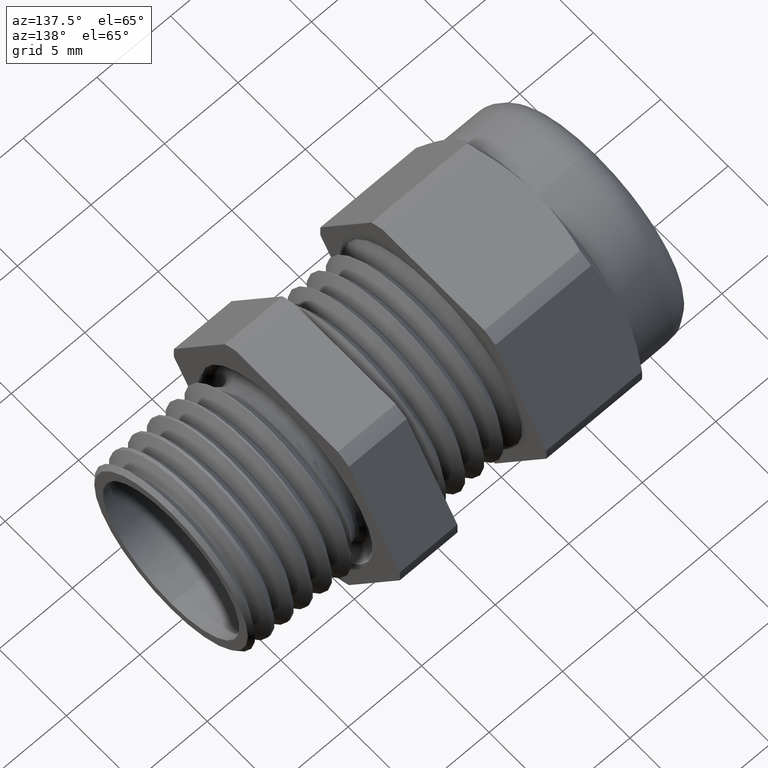
[diagram: clean part render]
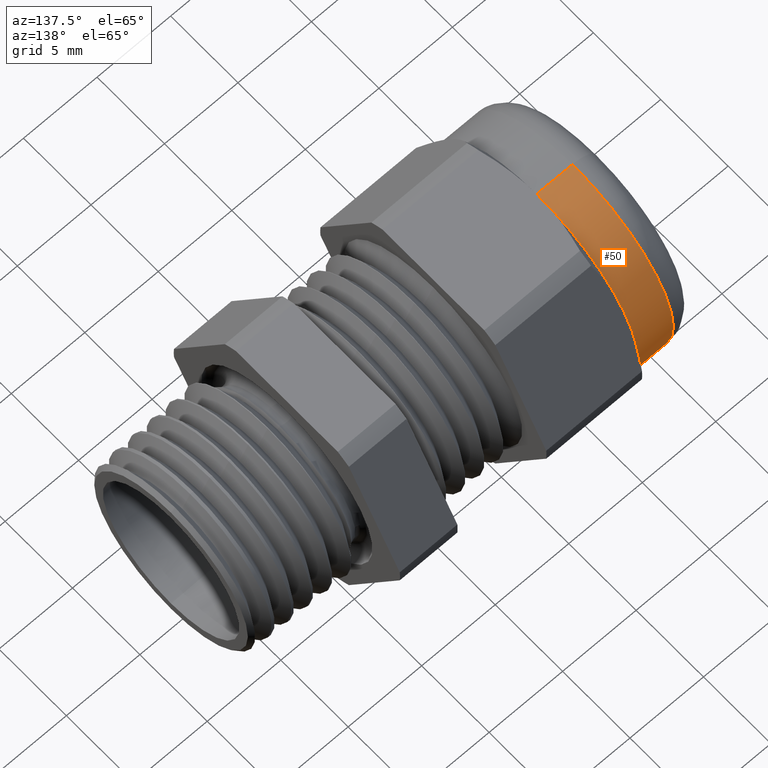
[diagram: same view with one face highlighted and labeled with its STEP entity id]
A machine part, auxiliary view. The second image highlights one B-rep face of the part: STEP entity #50.
In plain terms, the highlighted cylindrical surface (partial cylindrical patch) has radius 7.493 mm, axis along (-1, 0, 0).
Its self-contained STEP definition (entity closure, byte-faithful):
#3 = ORIENTED_EDGE ( 'NONE', *, *, #4, .F. ) ;
#4 = EDGE_CURVE ( 'NONE', #383, #20, #1196, .T. ) ;
#5 = ORIENTED_EDGE ( 'NONE', *, *, #391, .T. ) ;
#6 = EDGE_CURVE ( 'NONE', #43, #392, #1191, .T. ) ;
#20 = VERTEX_POINT ( 'NONE', #1225 ) ;
#43 = VERTEX_POINT ( 'NONE', #1305 ) ;
#46 = ORIENTED_EDGE ( 'NONE', *, *, #6, .T. ) ;
#50 = ADVANCED_FACE ( 'NONE', ( #1290 ), #1289, .T. ) ;
#51 = VERTEX_POINT ( 'NONE', #1347 ) ;
#52 = EDGE_CURVE ( 'NONE', #51, #43, #1346, .T. ) ;
#53 = ORIENTED_EDGE ( 'NONE', *, *, #52, .T. ) ;
#357 = ORIENTED_EDGE ( 'NONE', *, *, #360, .T. ) ;
#360 = EDGE_CURVE ( 'NONE', #365, #51, #1898, .T. ) ;
#365 = VERTEX_POINT ( 'NONE', #1951 ) ;
#383 = VERTEX_POINT ( 'NONE', #1982 ) ;
#384 = ORIENTED_EDGE ( 'NONE', *, *, #385, .T. ) ;
#385 = EDGE_CURVE ( 'NONE', #383, #365, #1981, .T. ) ;
#391 = EDGE_CURVE ( 'NONE', #392, #20, #1975, .T. ) ;
#392 = VERTEX_POINT ( 'NONE', #1970 ) ;
#395 = EDGE_LOOP ( 'NONE', ( #53, #46, #5, #3, #384, #357 ) ) ;
#1188 = DIRECTION ( 'NONE',  ( -1.000000000000000000, 0.0000000000000000000, 0.0000000000000000000 ) ) ;
#1189 = VECTOR ( 'NONE', #1188, 39.37007874015748100 ) ;
#1190 = CARTESIAN_POINT ( 'NONE',  ( -0.7238591030180623300, 3.612708057484689500E-017, -0.2949999999999998200 ) ) ;
#1191 = LINE ( 'NONE', #1190, #1189 ) ;
#1193 = DIRECTION ( 'NONE',  ( -1.000000000000000000, 0.0000000000000000000, 0.0000000000000000000 ) ) ;
#1194 = VECTOR ( 'NONE', #1193, 39.37007874015748100 ) ;
#1195 = CARTESIAN_POINT ( 'NONE',  ( -0.7238591030180623300, 0.0000000000000000000, 0.2949999999999998200 ) ) ;
#1196 = LINE ( 'NONE', #1195, #1194 ) ;
#1225 = CARTESIAN_POINT ( 'NONE',  ( -0.7645999999999999500, 0.0000000000000000000, 0.2949999999999998200 ) ) ;
#1288 = CARTESIAN_POINT ( 'NONE',  ( -0.7238591030180623300, 0.0000000000000000000, 0.0000000000000000000 ) ) ;
#1289 = CYLINDRICAL_SURFACE ( 'NONE', #1350, 0.2949999999999998200 ) ;
#1290 = FACE_OUTER_BOUND ( 'NONE', #395, .T. ) ;
#1305 = CARTESIAN_POINT ( 'NONE',  ( -0.6687499999999999600, 0.0000000000000000000, -0.2949999999999998700 ) ) ;
#1342 = DIRECTION ( 'NONE',  ( 0.0000000000000000000, 0.0000000000000000000, 1.000000000000000000 ) ) ;
#1343 = DIRECTION ( 'NONE',  ( -1.000000000000000000, 0.0000000000000000000, 0.0000000000000000000 ) ) ;
#1344 = CARTESIAN_POINT ( 'NONE',  ( -0.6687499999999999600, 0.0000000000000000000, 0.0000000000000000000 ) ) ;
#1345 = AXIS2_PLACEMENT_3D ( 'NONE', #1344, #1343, #1342 ) ;
#1346 = CIRCLE ( 'NONE', #1345, 0.2949999999999998700 ) ;
#1347 = CARTESIAN_POINT ( 'NONE',  ( -0.6687499999999999600, 0.2554774941164093000, -0.1474999999999999100 ) ) ;
#1348 = DIRECTION ( 'NONE',  ( 0.0000000000000000000, 0.0000000000000000000, 1.000000000000000000 ) ) ;
#1349 = DIRECTION ( 'NONE',  ( -1.000000000000000000, 0.0000000000000000000, 0.0000000000000000000 ) ) ;
#1350 = AXIS2_PLACEMENT_3D ( 'NONE', #1288, #1349, #1348 ) ;
#1895 = DIRECTION ( 'NONE',  ( 0.0000000000000000000, 0.0000000000000000000, 1.000000000000000000 ) ) ;
#1896 = DIRECTION ( 'NONE',  ( -1.000000000000000000, 0.0000000000000000000, 0.0000000000000000000 ) ) ;
#1897 = AXIS2_PLACEMENT_3D ( 'NONE', #1902, #1896, #1895 ) ;
#1898 = CIRCLE ( 'NONE', #1897, 0.2949999999999998700 ) ;
#1902 = CARTESIAN_POINT ( 'NONE',  ( -0.6687499999999999600, 0.0000000000000000000, 0.0000000000000000000 ) ) ;
#1951 = CARTESIAN_POINT ( 'NONE',  ( -0.6687499999999999600, 0.2554774941164093000, 0.1474999999999999400 ) ) ;
#1970 = CARTESIAN_POINT ( 'NONE',  ( -0.7645999999999999500, 3.612708057484689500E-017, -0.2949999999999998200 ) ) ;
#1971 = DIRECTION ( 'NONE',  ( 0.0000000000000000000, 0.0000000000000000000, -1.000000000000000000 ) ) ;
#1972 = DIRECTION ( 'NONE',  ( 1.000000000000000000, 0.0000000000000000000, 0.0000000000000000000 ) ) ;
#1973 = CARTESIAN_POINT ( 'NONE',  ( -0.7645999999999999500, 0.0000000000000000000, 0.0000000000000000000 ) ) ;
#1974 = AXIS2_PLACEMENT_3D ( 'NONE', #1973, #1972, #1971 ) ;
#1975 = CIRCLE ( 'NONE', #1974, 0.2949999999999998200 ) ;
#1977 = DIRECTION ( 'NONE',  ( 0.0000000000000000000, 0.0000000000000000000, 1.000000000000000000 ) ) ;
#1978 = DIRECTION ( 'NONE',  ( -1.000000000000000000, 0.0000000000000000000, 0.0000000000000000000 ) ) ;
#1979 = CARTESIAN_POINT ( 'NONE',  ( -0.6687499999999999600, 0.0000000000000000000, 0.0000000000000000000 ) ) ;
#1980 = AXIS2_PLACEMENT_3D ( 'NONE', #1979, #1978, #1977 ) ;
#1981 = CIRCLE ( 'NONE', #1980, 0.2949999999999998700 ) ;
#1982 = CARTESIAN_POINT ( 'NONE',  ( -0.6687499999999999600, 0.0000000000000000000, 0.2949999999999998700 ) ) ;